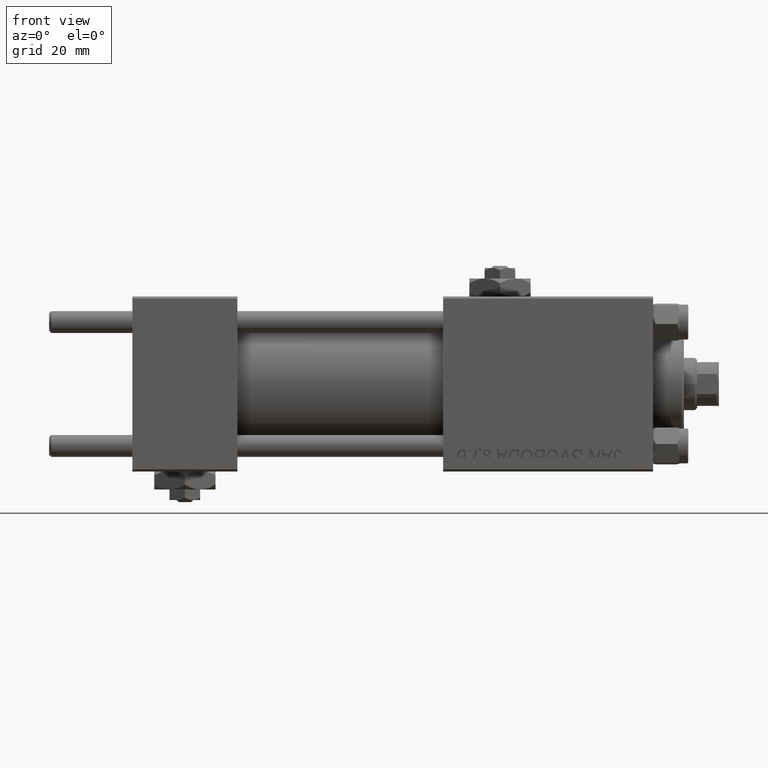
[diagram: clean part render]
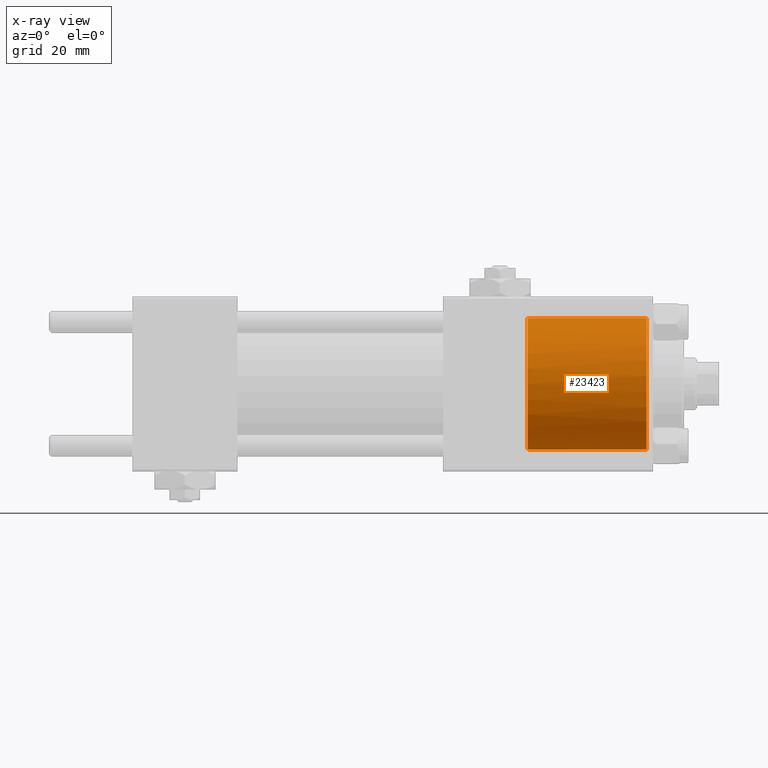
[diagram: x-ray — body ghosted, one internal face saturated and labeled with its STEP entity id]
A machine part, front view, then the same camera in x-ray: the body is ghosted and one INTERNAL B-rep face — a face not visible from any outside direction — is saturated and labeled: STEP entity #23423.
In plain terms, the highlighted cylindrical surface (partial cylindrical patch) has radius 15 mm, axis along (1, 0, 0).
Its self-contained STEP definition (entity closure, byte-faithful):
#1435 = CARTESIAN_POINT ( 'NONE',  ( 90.58000000000154728, 1.836897619300433381E-15, 15.00000000000000000 ) ) ;
#2113 = CARTESIAN_POINT ( 'NONE',  ( 90.58000000000001251, -7.257782860942566163E-20, -15.00000000000000000 ) ) ;
#2267 = EDGE_LOOP ( 'NONE', ( #12249, #34559, #21665, #44632, #25019, #24308 ) ) ;
#2293 = CARTESIAN_POINT ( 'NONE',  ( 90.46247493449395449, -1.278752734038846484, 14.94875937294843737 ) ) ;
#3649 = CARTESIAN_POINT ( 'NONE',  ( 90.58000000000001251, -7.257782860942566163E-20, -15.00000000000000000 ) ) ;
#3704 = CIRCLE ( 'NONE', #38944, 15.00000000000000000 ) ;
#4274 = VERTEX_POINT ( 'NONE', #16033 ) ;
#6198 = EDGE_CURVE ( 'NONE', #14238, #4274, #7261, .T. ) ;
#6574 = CARTESIAN_POINT ( 'NONE',  ( 90.55605924908620352, -0.6456608678131530166, -14.98945420583751442 ) ) ;
#6893 = EDGE_CURVE ( 'NONE', #37113, #15020, #28091, .T. ) ;
#7179 = CARTESIAN_POINT ( 'NONE',  ( 90.30000000000001137, -1.899052395275083960, -14.87930105885353527 ) ) ;
#7261 = LINE ( 'NONE', #34329, #41344 ) ;
#8573 = CARTESIAN_POINT ( 'NONE',  ( 90.30000000000001137, -1.899052395280420136, 14.87930105885285670 ) ) ;
#9423 = CARTESIAN_POINT ( 'NONE',  ( 90.55605924908761040, -0.6456608678150235203, 14.98945420583744870 ) ) ;
#9768 = CIRCLE ( 'NONE', #27387, 15.00000000000000000 ) ;
#10254 = AXIS2_PLACEMENT_3D ( 'NONE', #24191, #44675, #35995 ) ;
#11864 = CARTESIAN_POINT ( 'NONE',  ( 117.5000000000000000, 0.000000000000000000, 0.000000000000000000 ) ) ;
#12249 = ORIENTED_EDGE ( 'NONE', *, *, #43042, .F. ) ;
#13700 = VECTOR ( 'NONE', #29137, 1000.000000000000000 ) ;
#14238 = VERTEX_POINT ( 'NONE', #3649 ) ;
#14733 = CARTESIAN_POINT ( 'NONE',  ( 90.30000000000001137, -1.899052395275083960, -14.87930105885353527 ) ) ;
#15012 = EDGE_CURVE ( 'NONE', #14238, #37321, #21676, .T. ) ;
#15020 = VERTEX_POINT ( 'NONE', #47014 ) ;
#15244 = CARTESIAN_POINT ( 'NONE',  ( 90.57999999999999829, -0.3230844264531260723, -14.99999999999999822 ) ) ;
#15890 = DIRECTION ( 'NONE',  ( 1.000000000000000000, 0.000000000000000000, 0.000000000000000000 ) ) ;
#16033 = CARTESIAN_POINT ( 'NONE',  ( 117.5000000000000000, 0.000000000000000000, -15.00000000000000000 ) ) ;
#16048 = FACE_OUTER_BOUND ( 'NONE', #2267, .T. ) ;
#21665 = ORIENTED_EDGE ( 'NONE', *, *, #36038, .T. ) ;
#21676 = B_SPLINE_CURVE_WITH_KNOTS ( 'NONE', 3,
 ( #2113, #15244, #6574, #47274, #31266, #14733 ),
 .UNSPECIFIED., .F., .F.,
 ( 4, 2, 4 ),
 ( 0.001923267627920477972, 0.002881828648807242647, 0.003840389669694007756 ),
 .UNSPECIFIED. ) ;
#22981 = DIRECTION ( 'NONE',  ( 0.000000000000000000, 0.000000000000000000, -1.000000000000000000 ) ) ;
#23423 = ADVANCED_FACE ( 'NONE', ( #16048 ), #40453, .F. ) ;
#24191 = CARTESIAN_POINT ( 'NONE',  ( 90.30000000000001137, 0.000000000000000000, 0.000000000000000000 ) ) ;
#24308 = ORIENTED_EDGE ( 'NONE', *, *, #29427, .F. ) ;
#25019 = ORIENTED_EDGE ( 'NONE', *, *, #15012, .T. ) ;
#25445 = CARTESIAN_POINT ( 'NONE',  ( 90.58000000000156149, -0.3230844264541308797, 14.99999999999999822 ) ) ;
#25711 = CARTESIAN_POINT ( 'NONE',  ( 90.58000000000154728, 1.836897619300433381E-15, 15.00000000000000000 ) ) ;
#27387 = AXIS2_PLACEMENT_3D ( 'NONE', #11864, #27889, #43897 ) ;
#27889 = DIRECTION ( 'NONE',  ( 1.000000000000000000, 0.000000000000000000, 0.000000000000000000 ) ) ;
#28091 = LINE ( 'NONE', #48569, #13700 ) ;
#29137 = DIRECTION ( 'NONE',  ( 1.000000000000000000, -0.000000000000000000, -0.000000000000000000 ) ) ;
#29427 = EDGE_CURVE ( 'NONE', #35225, #37321, #3704, .T. ) ;
#30162 = CARTESIAN_POINT ( 'NONE',  ( 90.30000000000001137, -1.899052395280420136, 14.87930105885285670 ) ) ;
#31266 = CARTESIAN_POINT ( 'NONE',  ( 90.39284622331618380, -1.591040247560122856, -14.91861279833500120 ) ) ;
#34329 = CARTESIAN_POINT ( 'NONE',  ( 90.30000000000001137, 0.000000000000000000, -15.00000000000000000 ) ) ;
#34559 = ORIENTED_EDGE ( 'NONE', *, *, #6893, .T. ) ;
#35225 = VERTEX_POINT ( 'NONE', #8573 ) ;
#35995 = DIRECTION ( 'NONE',  ( 0.000000000000000000, 0.000000000000000000, -1.000000000000000000 ) ) ;
#36038 = EDGE_CURVE ( 'NONE', #15020, #4274, #9768, .T. ) ;
#37113 = VERTEX_POINT ( 'NONE', #1435 ) ;
#37321 = VERTEX_POINT ( 'NONE', #7179 ) ;
#38944 = AXIS2_PLACEMENT_3D ( 'NONE', #47401, #15890, #22981 ) ;
#40453 = CYLINDRICAL_SURFACE ( 'NONE', #10254, 15.00000000000000000 ) ;
#41194 = CARTESIAN_POINT ( 'NONE',  ( 90.39284622331669539, -1.591040247564623700, 14.91861279833453757 ) ) ;
#41344 = VECTOR ( 'NONE', #46672, 1000.000000000000000 ) ;
#42818 = B_SPLINE_CURVE_WITH_KNOTS ( 'NONE', 3,
 ( #25711, #25445, #9423, #2293, #41194, #30162 ),
 .UNSPECIFIED., .F., .F.,
 ( 4, 2, 4 ),
 ( 0.001923267627926015643, 0.002881828648815649985, 0.003840389669705283893 ),
 .UNSPECIFIED. ) ;
#43042 = EDGE_CURVE ( 'NONE', #37113, #35225, #42818, .T. ) ;
#43897 = DIRECTION ( 'NONE',  ( 0.000000000000000000, 0.000000000000000000, 1.000000000000000000 ) ) ;
#44632 = ORIENTED_EDGE ( 'NONE', *, *, #6198, .F. ) ;
#44675 = DIRECTION ( 'NONE',  ( 1.000000000000000000, -0.000000000000000000, -0.000000000000000000 ) ) ;
#46672 = DIRECTION ( 'NONE',  ( 1.000000000000000000, -0.000000000000000000, -0.000000000000000000 ) ) ;
#47014 = CARTESIAN_POINT ( 'NONE',  ( 117.5000000000000000, 1.836970198721029589E-15, 15.00000000000000000 ) ) ;
#47274 = CARTESIAN_POINT ( 'NONE',  ( 90.46247493449305921, -1.278752734035207617, -14.94875937294873225 ) ) ;
#47401 = CARTESIAN_POINT ( 'NONE',  ( 90.30000000000001137, 0.000000000000000000, 0.000000000000000000 ) ) ;
#48569 = CARTESIAN_POINT ( 'NONE',  ( 90.30000000000001137, 1.836970198721029589E-15, 15.00000000000000000 ) ) ;